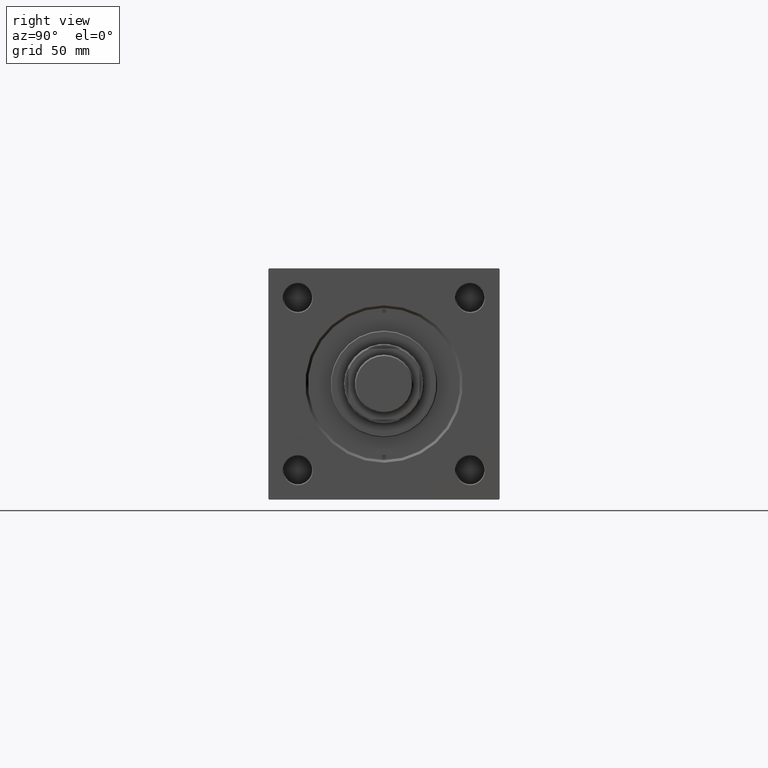
[diagram: clean part render]
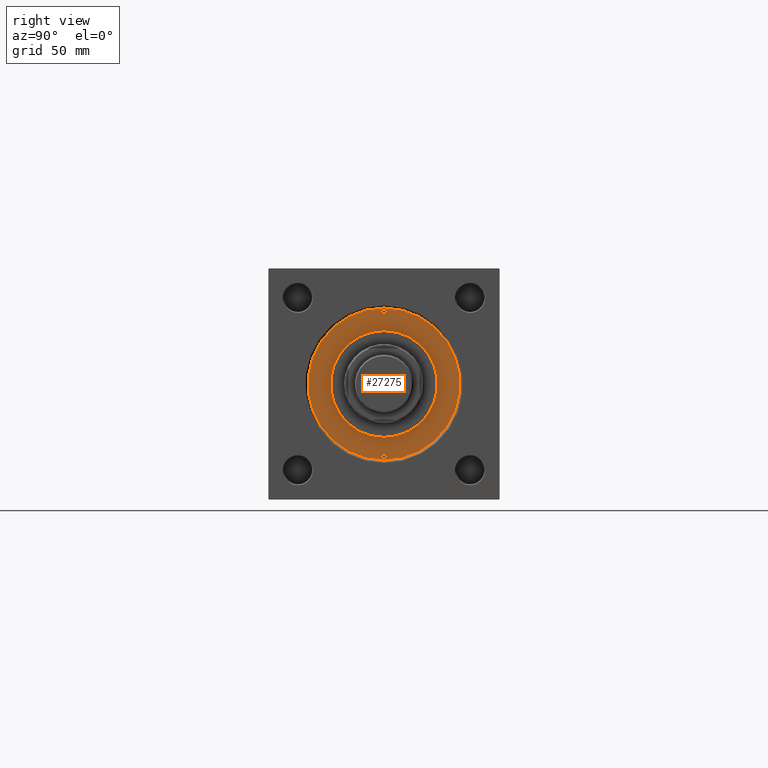
[diagram: same view with one face highlighted and labeled with its STEP entity id]
A machine part, right view. The second image highlights one B-rep face of the part: STEP entity #27275.
In plain terms, the highlighted planar face has unit normal (1, 0, 0).
Its self-contained STEP definition (entity closure, byte-faithful):
#458 = VERTEX_POINT ( 'NONE', #27299 ) ;
#1070 = AXIS2_PLACEMENT_3D ( 'NONE', #32462, #43651, #12768 ) ;
#2490 = DIRECTION ( 'NONE',  ( 0.000000000000000000, 0.000000000000000000, 1.000000000000000000 ) ) ;
#2587 = DIRECTION ( 'NONE',  ( 1.000000000000000000, 0.000000000000000000, 0.000000000000000000 ) ) ;
#2803 = AXIS2_PLACEMENT_3D ( 'NONE', #46825, #27354, #27110 ) ;
#2918 = EDGE_LOOP ( 'NONE', ( #5871, #45838 ) ) ;
#3405 = EDGE_LOOP ( 'NONE', ( #14442, #40142 ) ) ;
#3543 = ORIENTED_EDGE ( 'NONE', *, *, #42510, .F. ) ;
#3973 = CARTESIAN_POINT ( 'NONE',  ( -42.25000000000000000, 1.530808498934193050E-16, 28.69999999999999929 ) ) ;
#4542 = DIRECTION ( 'NONE',  ( 1.000000000000000000, 0.000000000000000000, 0.000000000000000000 ) ) ;
#4782 = EDGE_LOOP ( 'NONE', ( #36169, #32551 ) ) ;
#5871 = ORIENTED_EDGE ( 'NONE', *, *, #28252, .T. ) ;
#5937 = EDGE_CURVE ( 'NONE', #27314, #34430, #16012, .T. ) ;
#6309 = AXIS2_PLACEMENT_3D ( 'NONE', #29173, #26033, #25277 ) ;
#6477 = DIRECTION ( 'NONE',  ( 0.000000000000000000, 0.000000000000000000, 1.000000000000000000 ) ) ;
#8772 = CIRCLE ( 'NONE', #6309, 30.00000000000000000 ) ;
#9389 = DIRECTION ( 'NONE',  ( 1.000000000000000000, 0.000000000000000000, 0.000000000000000000 ) ) ;
#10008 = DIRECTION ( 'NONE',  ( 1.000000000000000000, 0.000000000000000000, 0.000000000000000000 ) ) ;
#11861 = VERTEX_POINT ( 'NONE', #19471 ) ;
#12768 = DIRECTION ( 'NONE',  ( 1.000000000000000000, 0.000000000000000000, 0.000000000000000000 ) ) ;
#13169 = CARTESIAN_POINT ( 'NONE',  ( -42.75000000000000000, 0.000000000000000000, 28.69999999999999929 ) ) ;
#13894 = CIRCLE ( 'NONE', #42892, 1.249999999999994227 ) ;
#14442 = ORIENTED_EDGE ( 'NONE', *, *, #43827, .F. ) ;
#16012 = CIRCLE ( 'NONE', #2803, 1.249999999999994227 ) ;
#16660 = CIRCLE ( 'NONE', #44860, 1.249999999999994227 ) ;
#16881 = VERTEX_POINT ( 'NONE', #28767 ) ;
#16942 = AXIS2_PLACEMENT_3D ( 'NONE', #28905, #17743, #24746 ) ;
#17508 = VERTEX_POINT ( 'NONE', #39039 ) ;
#17719 = FACE_BOUND ( 'NONE', #3405, .T. ) ;
#17743 = DIRECTION ( 'NONE',  ( 0.000000000000000000, 0.000000000000000000, 1.000000000000000000 ) ) ;
#17920 = EDGE_LOOP ( 'NONE', ( #3543, #40459 ) ) ;
#19471 = CARTESIAN_POINT ( 'NONE',  ( 42.24999999999999289, 0.000000000000000000, 28.69999999999999929 ) ) ;
#21171 = AXIS2_PLACEMENT_3D ( 'NONE', #42100, #45480, #22373 ) ;
#21333 = EDGE_CURVE ( 'NONE', #11861, #458, #42638, .T. ) ;
#22171 = CARTESIAN_POINT ( 'NONE',  ( -41.00000000000000000, 0.000000000000000000, 28.69999999999999929 ) ) ;
#22373 = DIRECTION ( 'NONE',  ( 1.000000000000000000, 0.000000000000000000, -0.000000000000000000 ) ) ;
#23423 = CIRCLE ( 'NONE', #1070, 30.00000000000000000 ) ;
#24003 = CARTESIAN_POINT ( 'NONE',  ( -39.75000000000000711, 0.000000000000000000, 28.69999999999999929 ) ) ;
#24229 = CARTESIAN_POINT ( 'NONE',  ( 41.00000000000000000, 0.000000000000000000, 28.69999999999999929 ) ) ;
#24746 = DIRECTION ( 'NONE',  ( 1.000000000000000000, 0.000000000000000000, 0.000000000000000000 ) ) ;
#24947 = EDGE_CURVE ( 'NONE', #16881, #26608, #29374, .T. ) ;
#25277 = DIRECTION ( 'NONE',  ( 1.000000000000000000, 0.000000000000000000, 0.000000000000000000 ) ) ;
#26033 = DIRECTION ( 'NONE',  ( 0.000000000000000000, 0.000000000000000000, 1.000000000000000000 ) ) ;
#26275 = FACE_BOUND ( 'NONE', #4782, .T. ) ;
#26608 = VERTEX_POINT ( 'NONE', #13169 ) ;
#27110 = DIRECTION ( 'NONE',  ( 1.000000000000000000, 0.000000000000000000, 0.000000000000000000 ) ) ;
#27275 = ADVANCED_FACE ( 'NONE', ( #38713, #26275, #17719, #33539 ), #49368, .T. ) ;
#27299 = CARTESIAN_POINT ( 'NONE',  ( 39.75000000000000000, 1.530808498934193050E-16, 28.69999999999999929 ) ) ;
#27314 = VERTEX_POINT ( 'NONE', #3973 ) ;
#27354 = DIRECTION ( 'NONE',  ( 0.000000000000000000, 0.000000000000000000, 1.000000000000000000 ) ) ;
#27738 = AXIS2_PLACEMENT_3D ( 'NONE', #41998, #6477, #2587 ) ;
#28252 = EDGE_CURVE ( 'NONE', #26608, #16881, #40252, .T. ) ;
#28767 = CARTESIAN_POINT ( 'NONE',  ( 42.75000000000000000, 5.235365066354935472E-15, 28.69999999999999929 ) ) ;
#28905 = CARTESIAN_POINT ( 'NONE',  ( 0.000000000000000000, 0.000000000000000000, 28.69999999999999929 ) ) ;
#29173 = CARTESIAN_POINT ( 'NONE',  ( 0.000000000000000000, 0.000000000000000000, 28.69999999999999929 ) ) ;
#29374 = CIRCLE ( 'NONE', #16942, 42.75000000000000000 ) ;
#31150 = AXIS2_PLACEMENT_3D ( 'NONE', #33224, #44906, #9389 ) ;
#32462 = CARTESIAN_POINT ( 'NONE',  ( 0.000000000000000000, 0.000000000000000000, 28.69999999999999929 ) ) ;
#32551 = ORIENTED_EDGE ( 'NONE', *, *, #32647, .F. ) ;
#32647 = EDGE_CURVE ( 'NONE', #458, #11861, #13894, .T. ) ;
#33224 = CARTESIAN_POINT ( 'NONE',  ( 0.000000000000000000, 0.000000000000000000, 28.69999999999999929 ) ) ;
#33539 = FACE_OUTER_BOUND ( 'NONE', #2918, .T. ) ;
#34430 = VERTEX_POINT ( 'NONE', #24003 ) ;
#36169 = ORIENTED_EDGE ( 'NONE', *, *, #21333, .F. ) ;
#38713 = FACE_BOUND ( 'NONE', #17920, .T. ) ;
#39039 = CARTESIAN_POINT ( 'NONE',  ( 30.00000000000000000, 3.673940397442059178E-15, 28.69999999999999929 ) ) ;
#39577 = CARTESIAN_POINT ( 'NONE',  ( -30.00000000000000000, 0.000000000000000000, 28.69999999999999929 ) ) ;
#40067 = DIRECTION ( 'NONE',  ( 0.000000000000000000, 0.000000000000000000, 1.000000000000000000 ) ) ;
#40142 = ORIENTED_EDGE ( 'NONE', *, *, #51218, .F. ) ;
#40252 = CIRCLE ( 'NONE', #31150, 42.75000000000000000 ) ;
#40459 = ORIENTED_EDGE ( 'NONE', *, *, #5937, .F. ) ;
#41998 = CARTESIAN_POINT ( 'NONE',  ( 41.00000000000000000, 0.000000000000000000, 28.69999999999999929 ) ) ;
#42100 = CARTESIAN_POINT ( 'NONE',  ( 0.000000000000000000, 0.000000000000000000, 28.69999999999999929 ) ) ;
#42510 = EDGE_CURVE ( 'NONE', #34430, #27314, #16660, .T. ) ;
#42638 = CIRCLE ( 'NONE', #27738, 1.249999999999994227 ) ;
#42892 = AXIS2_PLACEMENT_3D ( 'NONE', #24229, #40067, #4542 ) ;
#43651 = DIRECTION ( 'NONE',  ( 0.000000000000000000, 0.000000000000000000, 1.000000000000000000 ) ) ;
#43827 = EDGE_CURVE ( 'NONE', #44668, #17508, #23423, .T. ) ;
#44668 = VERTEX_POINT ( 'NONE', #39577 ) ;
#44860 = AXIS2_PLACEMENT_3D ( 'NONE', #22171, #2490, #10008 ) ;
#44906 = DIRECTION ( 'NONE',  ( 0.000000000000000000, 0.000000000000000000, 1.000000000000000000 ) ) ;
#45480 = DIRECTION ( 'NONE',  ( 0.000000000000000000, 0.000000000000000000, 1.000000000000000000 ) ) ;
#45838 = ORIENTED_EDGE ( 'NONE', *, *, #24947, .T. ) ;
#46825 = CARTESIAN_POINT ( 'NONE',  ( -41.00000000000000000, 0.000000000000000000, 28.69999999999999929 ) ) ;
#49368 = PLANE ( 'NONE',  #21171 ) ;
#51218 = EDGE_CURVE ( 'NONE', #17508, #44668, #8772, .T. ) ;